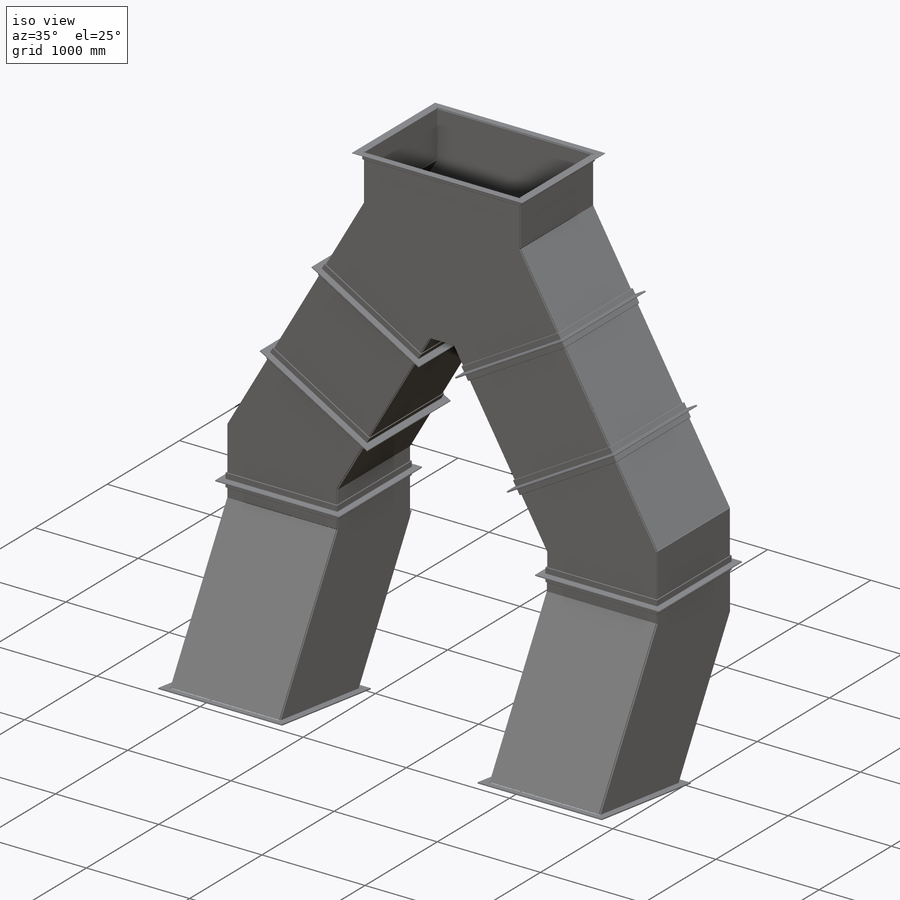
[diagram: iso view]
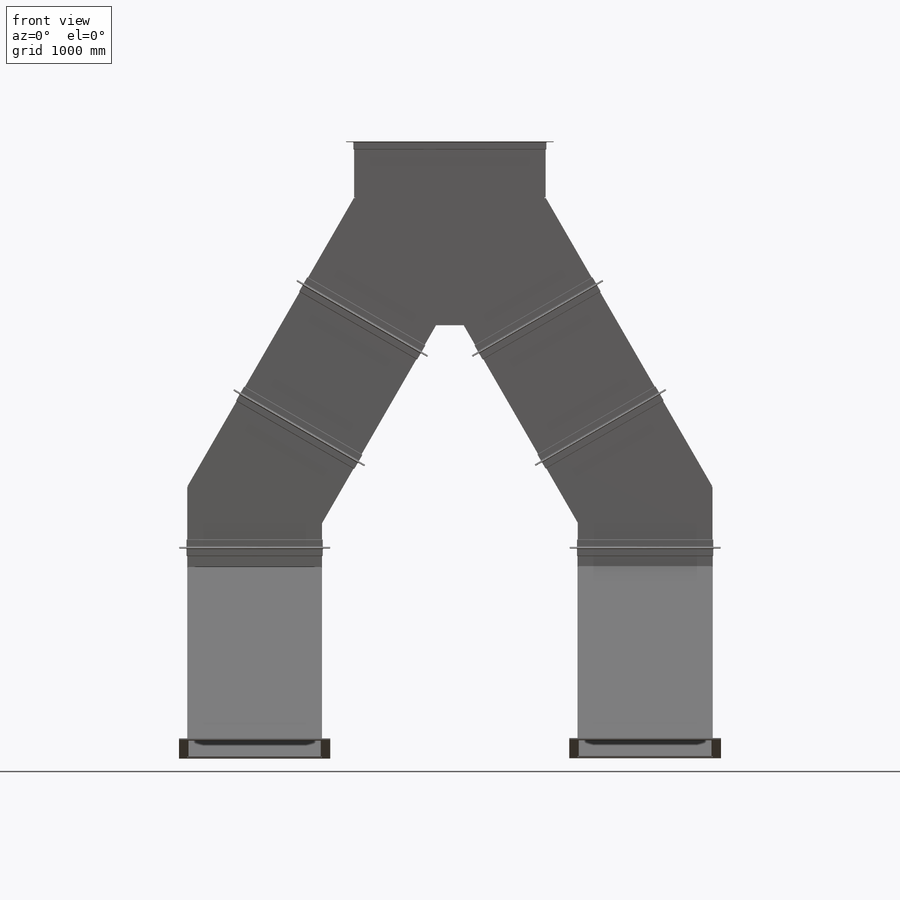
[diagram: front view]
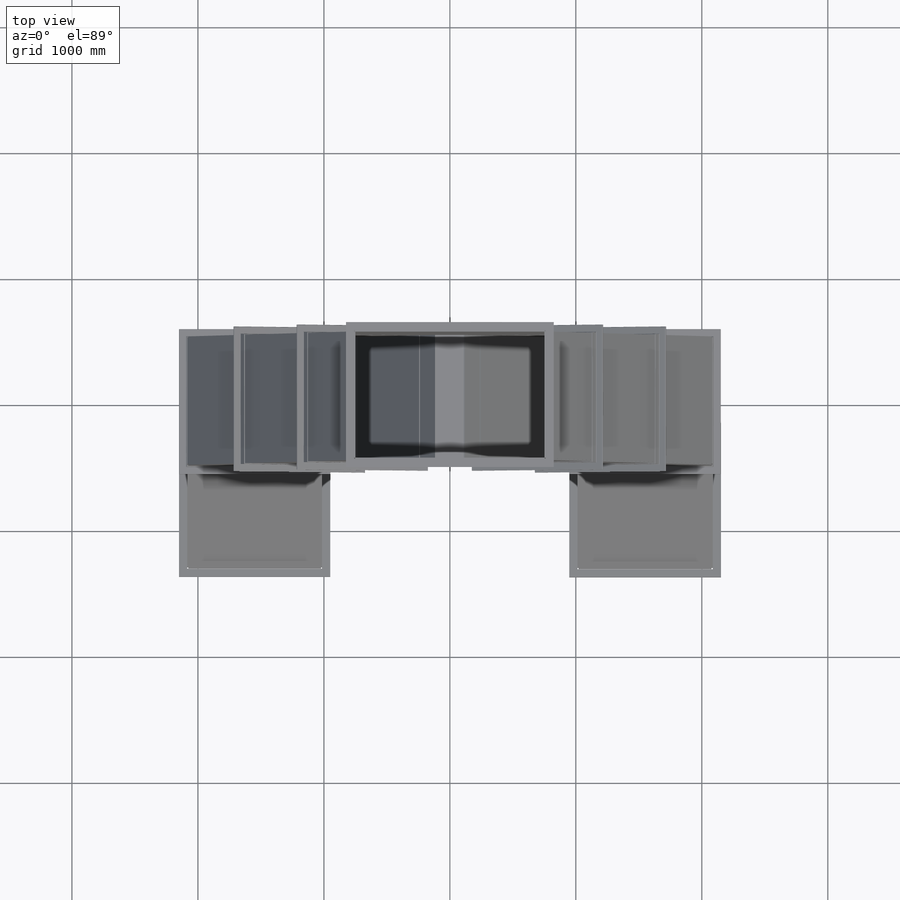
[diagram: top view]
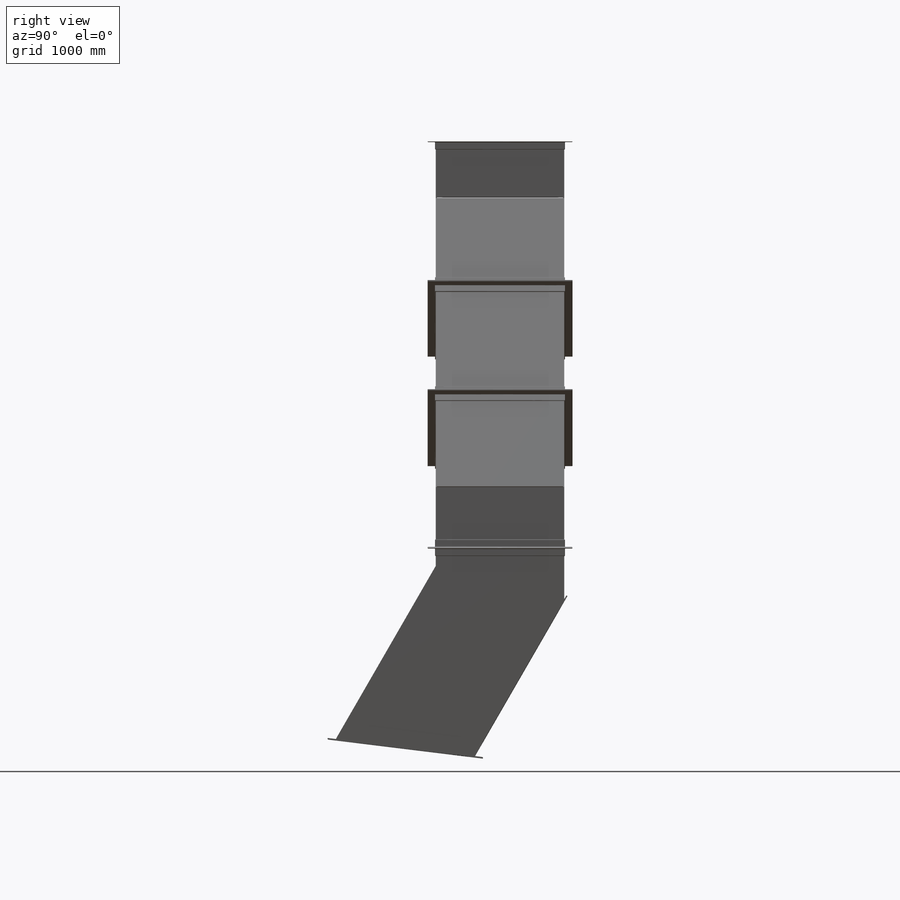
[diagram: right view]
SOLIDWORKS PART (.sldprt)
format: sldprt  version: not decoded by parser v0  size: 4,723,712 bytes
history: native  units: mm
features: sketch x61, extrude x41, material x40, plane x39, mirror x20 + 40 further entries (+11 scaffold rows collapsed)
feature tree (252):
  scaffold x11  (default folders/planes/origin — collapsed)
  material  "IS:2062-GR A"
  material  "IS:2062-GR A"
  material  "IS:2062-GR A"
  material  "IS:2062-GR A"
  material  "IS:2062-GR A"
  material  "IS:2062-GR A"
  material  "IS:2062-GR A"
  material  "IS:2062-GR A"
  material  "IS:2062-GR A"
  material  "IS:2062-GR A"
  material  "IS:2062-GR A"
  material  "IS:2062-GR A"
  material  "IS:2062-GR A"
  material  "IS:2062-GR A"
  material  "IS:2062-GR A"
  material  "IS:2062-GR A"
  material  "IS:2062-GR A"
  material  "IS:2062-GR A"
  material  "IS:2062-GR A"
  material  "IS:2062-GR A"
  material  "IS:2062-GR A"
  material  "IS:2062-GR A"
  material  "IS:2062-GR A"
  material  "IS:2062-GR A"
  material  "IS:2062-GR A"
  material  "IS:2062-GR A"
  material  "IS:2062-GR A"
  material  "IS:2062-GR A"
  material  "IS:2062-GR A"
  material  "IS:2062-GR A"
  material  "IS:2062-GR A"
  material  "IS:2062-GR A"
  material  "IS:2062-GR A"
  material  "IS:2062-GR A"
  material  "IS:2062-GR A"
  material  "IS:2062-GR A"
  material  "IS:2062-GR A"
  material  "IS:2062-GR A"
  material  "IS:2062-GR A"
  material  "IS:2062-GR A"
  "Cut-List-Item2"
  "Cut-List-Item3"
  "Cut-List-Item4"
  "Cut-List-Item5"
  "Cut-List-Item6"
  "Cut-List-Item7"
  "Cut-List-Item8"
  "Cut-List-Item9"
  "Cut-List-Item10"
  "Cut-List-Item11"
  "Cut-List-Item12"
  "Cut-List-Item13"
  "Cut-List-Item14"
  "Cut-List-Item15"
  "Cut-List-Item16"
  "Cut-List-Item17"
  "Cut-List-Item18"
  "Cut-List-Item19"
  "Cut-List-Item20"
  "Cut-List-Item21"
  "Cut-List-Item22"
  "Cut-List-Item23"
  "Cut-List-Item24"
  "Cut-List-Item25"
  "Cut-List-Item26"
  "Cut-List-Item27"
  "Cut-List-Item28"
  "Cut-List-Item29"
  "Cut-List-Item30"
  "Cut-List-Item31"
  "Cut-List-Item32"
  "Cut-List-Item33"
  "Cut-List-Item34"
  "Cut-List-Item35"
  "Cut-List-Item36"
  "Cut-List-Item37"
  "Cut-List-Item38"
  "Cut-List-Item39"
  "Cut-List-Item50"
  "Cut-List-Item51"
  sketch  "Sketch1"  dims[c1.D4=10.0mm c1.D5=100.0mm c1.D1=~96.00471mm c2.D1=~45.003882deg c2.D2=2000.0mm c3.D1=~2121.176621mm c4.D1=90.0deg c4.D3=200.0mm c4.D5=200.0mm c4.D6=~1230.508411mm c5.D6=90.0deg c5.D1=~2195.948748mm c6.D1=60.0deg c6.D7=525.0mm c6.D8=1050.0mm c6.D9=~133.423276mm c7.D9=90.0deg c7.D5=200.0mm c8.D9=300.0mm c8.D10=~2181.876828mm c9.D10=90.0deg c9.D11=8.0mm c9.D12=700.0mm c9.D13=20.0mm c9.D14=10.0mm c10.D13=~48.464674mm c11.D13=90.0deg c11.D14=750.0mm c11.D15=~459.807621mm c12.D15=60.0deg c12.D9=250.0mm c12.D2=1550.0mm c12.D17=1550.0mm c12.D18=~3676.87544mm c13.D18=60.0deg c13.D19=~3971.072022mm c14.D19=30.0deg c15.D19=~2598.076211mm c16.D19=30.0deg c16.D18=~4157.422807mm c17.D18=30.0deg c17.D15=1200.0mm c17.D20=~1141.702534mm c18.D20=~107.06729deg c18.D15=1200.0mm c19.D15=90.0deg c19.D20=750.0mm c19.D21=1200.0mm c19.D22=600.0mm c19.D23=450.0mm c19.D24=~1721.76316mm c20.D23=250.0mm c20.D15=250.0mm c20.D21=~404.788011mm c21.D21=90.0deg c21.D22=1050.0mm c21.D23=600.0mm c21.D3=200.0mm c21.D11=0.0mm c22.D23=1050.0mm c22.D24=525.0mm c22.D27=1000.0mm c22.D34=998.0mm c22.D33=1000.0mm c22.D35=200.0mm c23.D33=1000.0mm c23.D36=0.0mm c23.D37=1050.0mm c23.D38=525.0mm c23.D42=16.0mm c23.D41=200.0mm c23.D43=800.0mm c23.D44=1000.0mm c23.D48=150.0mm c23.D16=6.0mm c23.D24=8.0mm c23.D12=6.0mm c23.D25=2.0mm c23.D26=6.0mm c23.D28=6.0mm c23.D29=2.0mm c23.D30=6.0mm c23.D31=2.0mm c23.D32=6.0mm c24.D33=1000.0mm c24.D34=6.0mm c24.D39=2.0mm c24.D40=2.0mm c24.D41=6.0mm c25.D40=6.0mm c25.D42=6.0mm c25.D44=6.0mm c25.D45=2.0mm c25.D46=6.0mm c25.D47=150.0mm c25.D43=2.0mm c25.D48=6.0mm c25.D49=150.0mm]
  plane  "Plane1"
  sketch  "Sketch2"  dims[D1=1500.0mm D2=750.0mm D3=1000.0mm D4=500.0mm]
  plane  "Plane2"
  sketch  "Sketch5"  dims[D1=750.0mm D2=750.0mm]
  plane  "Plane3"
  plane  "Plane6"
  sketch  "Sketch19"  dims[D1=5.0mm D2=1000.0mm D3=500.0mm]
  extrude  "Boss-Extrude8"  Depth=10mm
  sketch  "Sketch20"  dims[D1=1000.0mm D2=500.0mm D3=10.0mm D4=3.0mm]
  extrude  "Boss-Extrude9"  Depth=10mm
  plane  "Plane7"
  sketch  "Sketch26"  dims[D1=5.5mm]
  extrude  "Boss-Extrude18"  Depth=10mm
  plane  "Plane8"
  sketch  "Sketch27"  dims[c1.D1=5.5mm c1.D2=5.5mm c1.D3=3.0mm c2.D2=5.5mm c2.D3=~228.87539mm]
  plane  "Plane9"
  extrude  "Boss-Extrude21"  Depth=10mm
  plane  "Plane11"
  sketch  "Sketch55"  dims[D1=5.5mm]
  extrude  "Boss-Extrude22"  Depth=10mm
  plane  "Plane14"
  sketch  "Sketch113"  dims[D1=5.0mm]
  extrude  "Boss-Extrude23"  Depth=10mm
  plane  "Plane17"
  sketch  "Sketch114"  dims[D1=5.0mm D2=1200.0mm]
  extrude  "Boss-Extrude24"  Depth=10mm
  sketch  "Sketch115"  dims[c1.D1=2.0mm c1.D2=2.0mm c1.D3=2.0mm c1.D4=2.0mm c1.D5=~252.855981mm c2.D5=~179.959447deg c3.D5=2.0mm c3.D6=~1007.782832mm c4.D6=~179.884476deg c5.D6=2.0mm c5.D7=~1005.87675mm c6.D7=~179.927814deg c7.D7=2.0mm c7.D8=194.0mm c7.D5=2.0mm]
  extrude  "Boss-Extrude25"  Depth=10mm
  mirror  "Mirror1"
  sketch  "Sketch116"  dims[c1.D1=14.0mm c1.D2=1200.0mm c1.D3=6.0mm c1.D4=6.0mm c2.D2=1200.0mm]
  sketch  "Sketch117"  dims[D1=14.0mm D2=1200.0mm]
  sketch  "Sketch119"  dims[c1.D1=6.0mm c1.D2=6.0mm c1.D3=1000.0mm c1.D4=2.0mm c2.D1=14.0mm c2.D3=8.0mm]
  sketch  "Sketch121"  dims[c1.D1=6.0mm c1.D2=1000.0mm c2.D1=6.0mm c2.D2=14.0mm c2.D3=10.0mm c2.D4=10.0mm c2.D5=1000.0mm c2.D6=6.0mm c3.D2=10.0mm c3.D4=6.0mm c3.D5=14.0mm c4.D4=2.0mm c4.D1=2.0mm]
  extrude  "Boss-Extrude32"  Depth=10mm
  extrude  "Boss-Extrude69"  Depth=10mm
  plane  "Plane27"  Offset=6mm
  sketch  "Sketch164"
  plane  "Plane28"
  sketch  "Sketch166"  dims[c1.D2=3.175mm c1.Radius_1=5.0mm c1.Radius_2=3.175mm c2.D2=5.0mm c2.D3=3.0mm c2.V_leg=50.8mm c2.H_leg=50.8mm c2.Thickness=3.175mm c2.D1=6.0mm c3.D3=46.0375mm c3.V_leg=25.4mm c3.H_leg=25.0mm c3.Flat_wid=~0.00508mm c4.D3=6.35mm c4.D2=0.005mm c5.D3=65.0mm]
  plane  "Plane29"  Offset=1mm
  mirror  "Mirror10"
  extrude  "Boss-Extrude34"  Depth=10mm
  extrude  "Boss-Extrude35"  Depth=10mm
  sketch  "Sketch124"  dims[D1=2.0mm D2=2.0mm]
  extrude  "Boss-Extrude36"  Depth=10mm
  sketch  "Sketch125"  dims[D1=2.0mm D2=2.0mm]
  extrude  "Boss-Extrude38"  Depth=10mm
  mirror  "Mirror4"
  sketch  "Sketch126"
  extrude  "Boss-Extrude39"  Depth=10mm
  sketch  "Sketch128"  dims[D1=2.0mm D2=2.0mm D3=~1068.232736mm]
  extrude  "Boss-Extrude41"  Depth=10mm
  plane  "Plane18"
  sketch  "Sketch129"
  extrude  "Boss-Extrude42"  Depth=10mm
  plane  "Plane19"
  sketch  "Sketch130"  dims[D1=1.0mm]
  extrude  "Boss-Extrude43"  Depth=10mm
  sketch  "Sketch131"  dims[c1.D1=2.0mm c1.D2=2.0mm c1.D3=~1069.807397mm c2.D3=~0.340969deg]
  extrude  "Boss-Extrude44"  Depth=10mm
  mirror  "Mirror5"
  sketch  "Sketch169"  dims[D1=1.0mm]
  extrude  "Boss-Extrude71"  Depth=10mm
  sketch  "Sketch132"
  extrude  "Boss-Extrude45"  Depth=10mm
  sketch  "Sketch133"  dims[D1=1.0mm]
  extrude  "Boss-Extrude46"  Depth=10mm
  sketch  "Sketch134"  dims[D1=2.0mm D2=2.0mm D3=~1067.451828mm]
  extrude  "Boss-Extrude47"  Depth=10mm
  plane  "Plane20"
  sketch  "Sketch135"
  extrude  "Boss-Extrude48"  Depth=10mm
  plane  "Plane21"
  sketch  "Sketch136"  dims[D1=1.0mm]
  extrude  "Boss-Extrude49"  Depth=10mm
  sketch  "Sketch138"  dims[D1=2.0mm D2=2.0mm]
  extrude  "Boss-Extrude50"  Depth=10mm
  mirror  "Mirror6"
  plane  "Plane30"  Offset=6mm
  sketch  "Sketch168"
  sketch  "Sketch141"  dims[D1=1.0mm D2=143.0mm]
  extrude  "Boss-Extrude51"  Depth=10mm
  sketch  "Sketch143"  dims[c1.D1=~1245.354412mm c2.D1=10.0deg c2.D2=~705.303153mm c3.D2=60.0deg c3.D3=~944.094595mm c4.D3=90.0deg c4.D4=150.0mm c4.D5=~1039.230485mm c4.D1=500.0mm c5.D5=~1250.024688mm c6.D5=7.0deg c6.D2=~1691.635378mm c7.D2=60.0deg c7.D5=800.0mm]
  sketch  "Sketch144"
  extrude  "Boss-Extrude52"  Depth=10mm
  plane  "Plane22"
  sketch  "Sketch145"
  extrude  "Boss-Extrude55"  Depth=10mm
  plane  "Plane23"
  mirror  "Mirror7"
  sketch  "Sketch146"
  extrude  "Boss-Extrude56"  Depth=10mm
  sketch  "Sketch147"  dims[D1=1.0mm]
  extrude  "Boss-Extrude57"  Depth=10mm
  plane  "Plane24"
  sketch  "Sketch154"
  extrude  "Boss-Extrude63"  Depth=10mm
  sketch  "Sketch157"  dims[c1.D1=2.0mm c1.D2=2.0mm c1.D3=~1005.870009mm c2.D3=90.0deg c2.D2=1.0mm c2.D4=800.0mm c2.D5=~3254.05131mm c3.D5=90.0deg c4.D5=~1155.930205mm c4.D4=500.0mm c5.D5=~1492.696916mm c6.D5=7.0deg c6.D6=~2524.396766mm c7.D6=60.0deg]
  sketch  "Sketch158"
  extrude  "Boss-Extrude65"  Depth=10mm
  extrude  "Boss-Extrude66"  Depth=10mm
  mirror  "Mirror9"
  sketch  "Sketch159"  dims[D1=1.0mm D2=2.0mm]
  extrude  "Boss-Extrude67"  Depth=10mm
  sketch  "Sketch160"  dims[D1=~1480.239569mm]
  extrude  "Boss-Extrude68"  Depth=10mm
  extrude  "Boss-Extrude70"  [1 undecoded]
  sketch  "Sketch119<2>"  dims[D1=10.0mm]
  mirror  "Structural Member2"
  plane  "Plane31"
  sketch  "Sketch167"  dims[c1.D2=3.175mm c1.Radius_1=5.0mm c1.Radius_2=3.175mm c2.D2=5.0mm c2.D3=3.0mm c2.V_leg=50.8mm c2.H_leg=50.8mm c2.Thickness=3.175mm c2.D1=6.0mm c3.D3=46.0375mm c3.V_leg=25.4mm c3.H_leg=25.0mm c3.Flat_wid=~0.00508mm c4.D3=6.35mm c4.D2=0.005mm c5.D3=65.0mm]
  plane  "Plane32"  Offset=1mm
  mirror  "Mirror11"
  plane  "Plane34"  Offset=6mm
  sketch  "Sketch170"
  mirror  "Structural Member3"
  plane  "Plane35"
  sketch  "Sketch171"  dims[c1.D2=3.175mm c1.Radius_1=5.0mm c1.Radius_2=3.175mm c2.D2=5.0mm c2.D3=3.0mm c2.V_leg=50.8mm c2.H_leg=50.8mm c2.Thickness=3.175mm c2.D1=6.0mm c3.D3=46.0375mm c3.V_leg=25.4mm c3.H_leg=25.0mm c3.Flat_wid=~0.00508mm c4.D3=6.35mm c4.D2=0.005mm c5.D3=65.0mm]
  plane  "Plane36"  Offset=1mm
  mirror  "Mirror12"
  plane  "Plane37"  Offset=6mm
  sketch  "Sketch174"
  mirror  "Structural Member4"
  plane  "Plane39"
  sketch  "Sketch173"  dims[c1.D2=3.175mm c1.Radius_1=5.0mm c1.Radius_2=3.175mm c2.D2=5.0mm c2.D3=3.0mm c2.V_leg=50.8mm c2.H_leg=50.8mm c2.Thickness=3.175mm c2.D1=6.0mm c3.D3=46.0375mm c3.V_leg=25.4mm c3.H_leg=25.0mm c3.Flat_wid=~0.00508mm c4.D3=6.35mm c4.D2=0.005mm c5.D3=65.0mm]
  plane  "Plane40"  Offset=1mm
  mirror  "Mirror13"
  plane  "Plane41"  Offset=6mm
  sketch  "Sketch179"
  mirror  "Structural Member5"
  plane  "Plane42"
  sketch  "Sketch175"  dims[c1.D2=3.175mm c1.Radius_1=5.0mm c1.Radius_2=3.175mm c2.D2=5.0mm c2.D3=3.0mm c2.V_leg=50.8mm c2.H_leg=50.8mm c2.Thickness=3.175mm c2.D1=6.0mm c3.D3=46.0375mm c3.V_leg=25.4mm c3.H_leg=25.0mm c3.Flat_wid=~0.00508mm c4.D3=6.35mm c4.D2=0.005mm c5.D3=65.0mm]
  plane  "Plane43"  Offset=1mm
  mirror  "Mirror14"
  plane  "Plane44"  Offset=6mm
  sketch  "Sketch180"
  mirror  "Structural Member6"
  plane  "Plane45"
  sketch  "Sketch176"  dims[c1.D2=3.175mm c1.Radius_1=5.0mm c1.Radius_2=3.175mm c2.D2=5.0mm c2.D3=3.0mm c2.V_leg=50.8mm c2.H_leg=50.8mm c2.Thickness=3.175mm c2.D1=6.0mm c3.D3=46.0375mm c3.V_leg=25.4mm c3.H_leg=25.0mm c3.Flat_wid=~0.00508mm c4.D3=6.35mm c4.D2=0.005mm c5.D3=65.0mm]
  plane  "Plane46"  Offset=1mm
  mirror  "Mirror15"
  plane  "Plane47"  Offset=2mm
  plane  "Plane10"  Offset=200mm
  sketch  "Sketch181"
  mirror  "Structural Member7"
  plane  "Plane12"
  sketch  "Sketch183"  dims[c1.D2=3.175mm c1.Radius_1=5.0mm c1.Radius_2=3.175mm c2.D2=5.0mm c2.D3=3.0mm c2.V_leg=50.8mm c2.H_leg=50.8mm c2.Thickness=3.175mm c2.D1=6.0mm c3.D3=46.0375mm c3.V_leg=25.4mm c3.H_leg=25.0mm c3.Flat_wid=~0.00508mm c4.D3=6.35mm c4.D2=0.005mm c5.D3=65.0mm]
  sketch  "Sketch185"  dims[c1.D1=~51.04185mm c2.D1=90.0deg c2.D2=10.0mm c2.D3=10.0mm c2.D4=10.0mm c2.D5=~1279.141683mm c3.D5=~0.333884deg c4.D5=~9.858029mm c5.D5=90.0deg c6.D5=8.0mm]
  sketch  "Sketch187"  dims[D1=65.0mm D2=0.0mm D3=0.0mm D4=~174.732388mm]
  extrude  "Boss-Extrude72"  Depth=10mm
  mirror  "Mirror16"
  sketch  "Sketch188"  dims[D1=65.0mm D2=65.0mm]
  extrude  "Boss-Extrude73"  Depth=10mm
  sketch  "Sketch190"  dims[c1.D1=~66.035377mm c2.D1=90.0deg c2.D2=~184.671043mm c3.D2=90.0deg c4.D2=10.0mm c4.D3=10.0mm c4.D4=10.0mm c4.D5=8.0mm]
  plane  "Plane48"  Offset=2mm
  sketch  "Sketch191"  dims[D1=65.0mm]
  extrude  "Boss-Extrude74"  Depth=10mm
  mirror  "Mirror17"
  sketch  "Sketch192"  dims[D1=65.0mm D2=65.0mm]
  extrude  "Boss-Extrude75"  Depth=10mm
decode coverage: 85 of 122 modeling features carry decoded parameters; 40 rows unclassified (native names shown)
note: ~ marks probable driven/reference dimensions
note: 1 parameter value undecoded
note: suppression state not decoded; provenance and decode notes live in map.json
